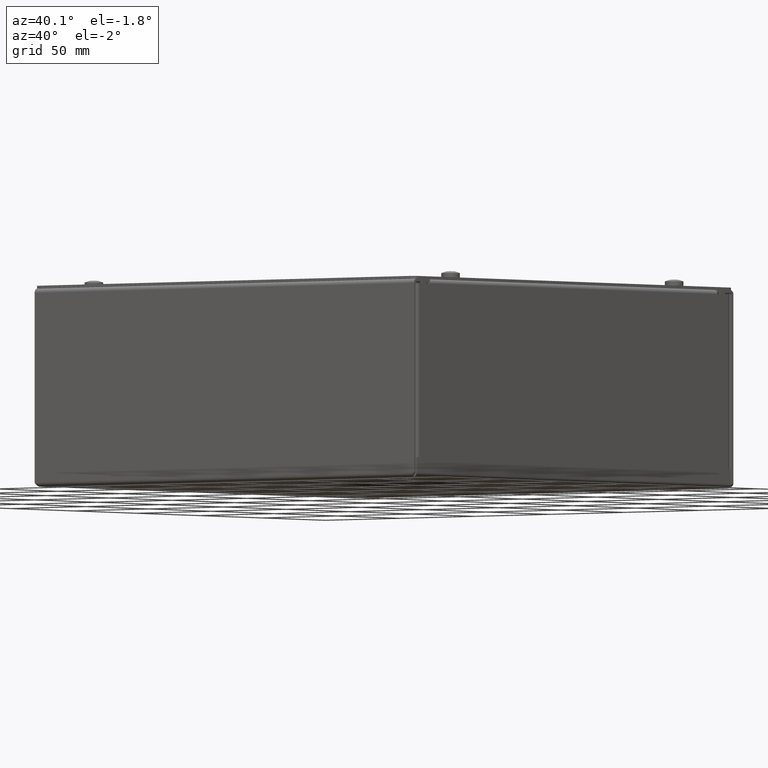
[diagram: clean part render]
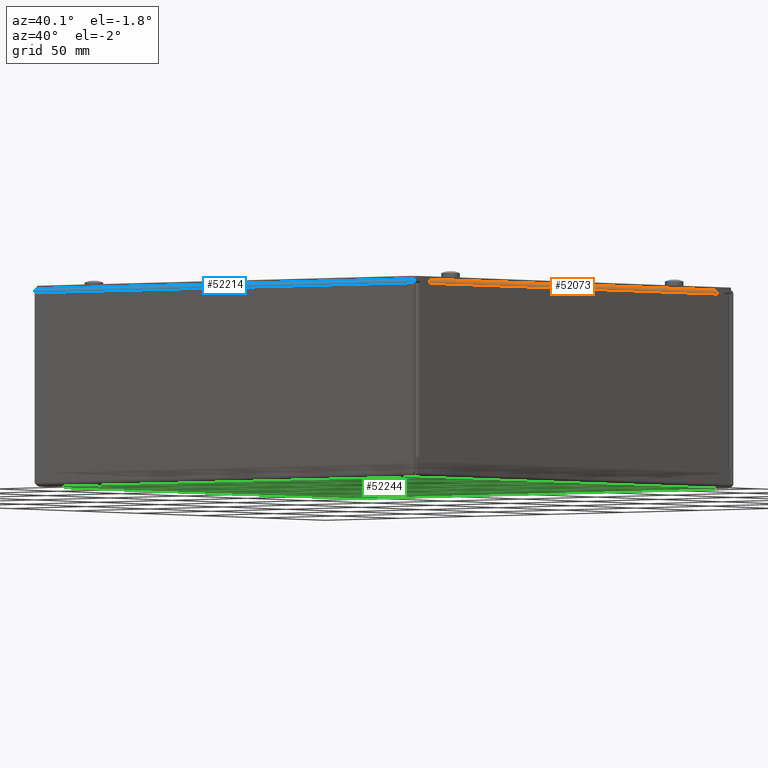
[diagram: same view with three faces highlighted in distinct colors, each labeled with its STEP entity id]
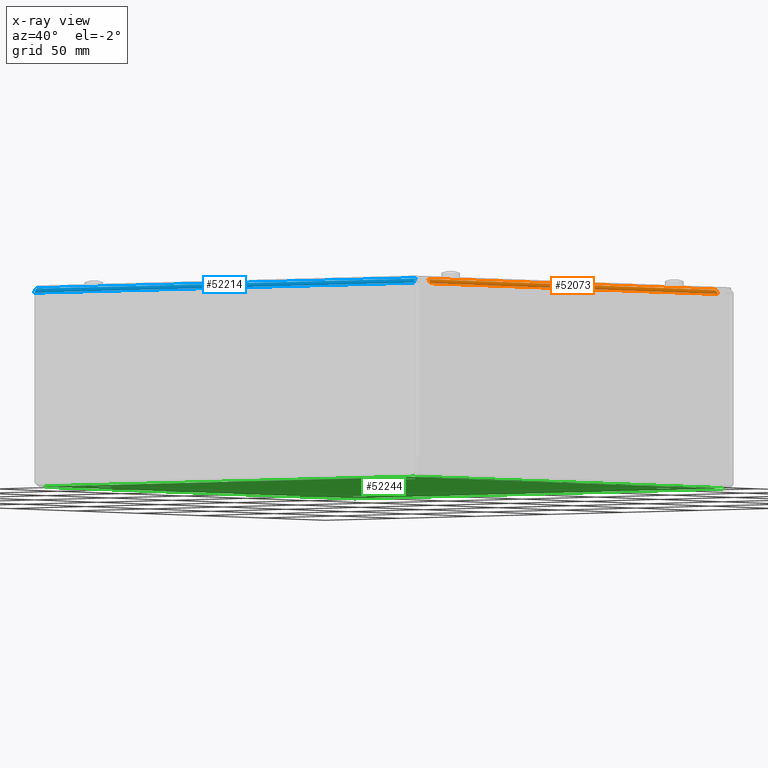
[diagram: x-ray of the same camera — body ghosted, the three highlighted faces saturated]
A machine part, auxiliary view with three faces highlighted in distinct colors.
The next image is the same camera in x-ray (body ghosted, the three faces saturated) — at least one of them is partly hidden behind the body in this view.
Their STEP definitions:

[orange] entity #52073 — the highlighted cylindrical surface (edge-blend (fillet) strip) has radius 2.1844 mm, axis along (0, -1, -0).
#6638=FACE_OUTER_BOUND('',#9436,.T.);
#9436=EDGE_LOOP('',(#37778,#37779,#37780,#37781));
#13009=LINE('',#70762,#18514);
#13010=LINE('',#70765,#18515);
#18514=VECTOR('',#59571,0.393700787401575);
#18515=VECTOR('',#59574,0.393700787401575);
#23621=CIRCLE('',#55383,0.0859999999999997);
#23622=CIRCLE('',#55384,0.0859999999999997);
#23975=VERTEX_POINT('',#68818);
#24625=VERTEX_POINT('',#70760);
#24626=VERTEX_POINT('',#70761);
#24627=VERTEX_POINT('',#70764);
#29914=EDGE_CURVE('',#24625,#24626,#13009,.T.);
#29915=EDGE_CURVE('',#24626,#23975,#23621,.T.);
#29916=EDGE_CURVE('',#24627,#23975,#13010,.T.);
#29917=EDGE_CURVE('',#24627,#24625,#23622,.T.);
#37778=ORIENTED_EDGE('',*,*,#29914,.T.);
#37779=ORIENTED_EDGE('',*,*,#29915,.T.);
#37780=ORIENTED_EDGE('',*,*,#29916,.F.);
#37781=ORIENTED_EDGE('',*,*,#29917,.T.);
#51590=CYLINDRICAL_SURFACE('',#55382,0.0860000000000014);
#52073=ADVANCED_FACE('',(#6638),#51590,.T.);
#55382=AXIS2_PLACEMENT_3D('',#70759,#59569,#59570);
#55383=AXIS2_PLACEMENT_3D('',#70763,#59572,#59573);
#55384=AXIS2_PLACEMENT_3D('',#70766,#59575,#59576);
#59569=DIRECTION('center_axis',(1.81384066852866E-32,-1.,-3.71808180211626E-80));
#59570=DIRECTION('ref_axis',(1.,1.81384066852866E-32,-2.04983925359457E-48));
#59571=DIRECTION('',(1.81384066852863E-32,-1.,-5.11825978746473E-32));
#59572=DIRECTION('center_axis',(-1.81384066852866E-32,1.,3.71808180211626E-80));
#59573=DIRECTION('ref_axis',(8.13201263230295E-15,0.,1.));
#59574=DIRECTION('',(-3.0230677808811E-32,-1.,0.));
#59575=DIRECTION('center_axis',(1.81384066852866E-32,-1.,-3.71808180211626E-80));
#59576=DIRECTION('ref_axis',(1.,0.,2.43960378969088E-14));
#68818=CARTESIAN_POINT('',(5.,-4.499,3.914));
#70759=CARTESIAN_POINT('Origin',(4.914,-7.15922911868259E-34,3.914));
#70760=CARTESIAN_POINT('',(4.914,4.499,4.));
#70761=CARTESIAN_POINT('',(4.914,-4.499,4.));
#70762=CARTESIAN_POINT('',(4.914,-2.32867608295518E-33,4.));
#70763=CARTESIAN_POINT('Origin',(4.914,-4.499,3.914));
#70764=CARTESIAN_POINT('',(5.,4.499,3.914));
#70765=CARTESIAN_POINT('',(5.,-2.2495,3.914));
#70766=CARTESIAN_POINT('Origin',(4.914,4.499,3.914));

[blue] entity #52214 — the highlighted cylindrical surface (edge-blend (fillet) strip) has radius 2.1844 mm, axis along (-1, 0, 0).
#6779=FACE_OUTER_BOUND('',#9659,.T.);
#9659=EDGE_LOOP('',(#38784,#38785,#38786,#38787));
#12410=LINE('',#68956,#17915);
#13286=LINE('',#71463,#18791);
#17915=VECTOR('',#57760,0.393700787401575);
#18791=VECTOR('',#60282,0.393700787401575);
#23695=CIRCLE('',#55593,0.0859999999999997);
#23696=CIRCLE('',#55595,0.0859999999999997);
#24024=VERTEX_POINT('',#68953);
#24025=VERTEX_POINT('',#68955);
#24832=VERTEX_POINT('',#71450);
#24833=VERTEX_POINT('',#71454);
#29011=EDGE_CURVE('',#24024,#24025,#12410,.T.);
#30261=EDGE_CURVE('',#24832,#24025,#23695,.T.);
#30264=EDGE_CURVE('',#24833,#24024,#23696,.T.);
#30267=EDGE_CURVE('',#24832,#24833,#13286,.T.);
#38784=ORIENTED_EDGE('',*,*,#29011,.F.);
#38785=ORIENTED_EDGE('',*,*,#30264,.F.);
#38786=ORIENTED_EDGE('',*,*,#30267,.F.);
#38787=ORIENTED_EDGE('',*,*,#30261,.T.);
#51621=CYLINDRICAL_SURFACE('',#55599,0.0859999999999998);
#52214=ADVANCED_FACE('',(#6779),#51621,.T.);
#55593=AXIS2_PLACEMENT_3D('',#71451,#60264,#60265);
#55595=AXIS2_PLACEMENT_3D('',#71456,#60270,#60271);
#55599=AXIS2_PLACEMENT_3D('',#71462,#60280,#60281);
#57760=DIRECTION('',(1.,-1.75198115615446E-32,-3.45255089946489E-31));
#60264=DIRECTION('center_axis',(-1.,1.75198115615465E-32,5.91506275761856E-63));
#60265=DIRECTION('ref_axis',(0.,-1.,1.62640252646059E-14));
#60270=DIRECTION('center_axis',(-1.,1.75198115615465E-32,5.91506275761856E-63));
#60271=DIRECTION('ref_axis',(0.,-1.,1.62640252646059E-14));
#60280=DIRECTION('center_axis',(-1.,1.75198115615465E-32,5.91506275761856E-63));
#60281=DIRECTION('ref_axis',(-1.75198115615465E-32,-1.,-3.37621368633969E-31));
#60282=DIRECTION('',(-1.,1.75198115615465E-32,0.));
#68953=CARTESIAN_POINT('',(-4.99999999999999,-4.914,4.));
#68955=CARTESIAN_POINT('',(5.,-4.914,4.));
#68956=CARTESIAN_POINT('',(-1.31128703695885E-16,-4.914,4.));
#71450=CARTESIAN_POINT('',(5.,-5.,3.914));
#71451=CARTESIAN_POINT('Origin',(5.,-4.914,3.914));
#71454=CARTESIAN_POINT('',(-5.,-5.,3.914));
#71456=CARTESIAN_POINT('Origin',(-5.,-4.914,3.914));
#71462=CARTESIAN_POINT('Origin',(6.91506962334235E-34,-4.914,3.914));
#71463=CARTESIAN_POINT('',(-2.5,-5.,3.914));

[green] entity #52244 — the highlighted planar face has unit normal (0, 0, 1).
#4210=FACE_BOUND('',#9736,.T.);
#4211=FACE_BOUND('',#9737,.T.);
#4212=FACE_BOUND('',#9738,.T.);
#4213=FACE_BOUND('',#9739,.T.);
#4796=PLANE('',#55633);
#6809=FACE_OUTER_BOUND('',#9735,.T.);
#9735=EDGE_LOOP('',(#39082,#39083,#39084,#39085));
#9736=EDGE_LOOP('',(#39086));
#9737=EDGE_LOOP('',(#39087));
#9738=EDGE_LOOP('',(#39088));
#9739=EDGE_LOOP('',(#39089));
#13309=LINE('',#71938,#18814);
#13313=LINE('',#71945,#18818);
#13317=LINE('',#71951,#18822);
#13320=LINE('',#71958,#18825);
#18814=VECTOR('',#60351,0.393700787401575);
#18818=VECTOR('',#60361,0.393700787401575);
#18822=VECTOR('',#60369,0.393700787401575);
#18825=VECTOR('',#60380,0.393700787401575);
#23310=CIRCLE('',#54734,0.145);
#23312=CIRCLE('',#54737,0.145);
#23314=CIRCLE('',#54740,0.145);
#23316=CIRCLE('',#54743,0.145);
#23936=VERTEX_POINT('',#68712);
#23938=VERTEX_POINT('',#68718);
#23940=VERTEX_POINT('',#68724);
#23942=VERTEX_POINT('',#68730);
#24814=VERTEX_POINT('',#71351);
#24827=VERTEX_POINT('',#71416);
#24845=VERTEX_POINT('',#71510);
#24847=VERTEX_POINT('',#71516);
#28894=EDGE_CURVE('',#23936,#23936,#23310,.T.);
#28897=EDGE_CURVE('',#23938,#23938,#23312,.T.);
#28900=EDGE_CURVE('',#23940,#23940,#23314,.T.);
#28903=EDGE_CURVE('',#23942,#23942,#23316,.T.);
#30306=EDGE_CURVE('',#24847,#24827,#13309,.T.);
#30310=EDGE_CURVE('',#24814,#24847,#13313,.T.);
#30314=EDGE_CURVE('',#24845,#24814,#13317,.T.);
#30317=EDGE_CURVE('',#24827,#24845,#13320,.T.);
#39082=ORIENTED_EDGE('',*,*,#30306,.T.);
#39083=ORIENTED_EDGE('',*,*,#30317,.T.);
#39084=ORIENTED_EDGE('',*,*,#30314,.T.);
#39085=ORIENTED_EDGE('',*,*,#30310,.T.);
#39086=ORIENTED_EDGE('',*,*,#28894,.T.);
#39087=ORIENTED_EDGE('',*,*,#28897,.T.);
#39088=ORIENTED_EDGE('',*,*,#28900,.T.);
#39089=ORIENTED_EDGE('',*,*,#28903,.T.);
#52244=ADVANCED_FACE('',(#6809,#4210,#4211,#4212,#4213),#4796,.F.);
#54734=AXIS2_PLACEMENT_3D('',#68714,#57564,#57565);
#54737=AXIS2_PLACEMENT_3D('',#68720,#57571,#57572);
#54740=AXIS2_PLACEMENT_3D('',#68726,#57578,#57579);
#54743=AXIS2_PLACEMENT_3D('',#68732,#57585,#57586);
#55633=AXIS2_PLACEMENT_3D('',#71960,#60383,#60384);
#57564=DIRECTION('center_axis',(0.,0.,1.));
#57565=DIRECTION('ref_axis',(1.,0.,0.));
#57571=DIRECTION('center_axis',(0.,0.,1.));
#57572=DIRECTION('ref_axis',(1.,0.,0.));
#57578=DIRECTION('center_axis',(0.,0.,1.));
#57579=DIRECTION('ref_axis',(1.,0.,0.));
#57585=DIRECTION('center_axis',(0.,0.,1.));
#57586=DIRECTION('ref_axis',(1.,0.,0.));
#60351=DIRECTION('',(-1.42318495396429E-16,1.,0.));
#60361=DIRECTION('',(-1.,0.,0.));
#60369=DIRECTION('',(1.42318495396429E-16,-1.,0.));
#60380=DIRECTION('',(1.,0.,0.));
#60383=DIRECTION('center_axis',(0.,0.,1.));
#60384=DIRECTION('ref_axis',(1.,0.,0.));
#68712=CARTESIAN_POINT('',(3.855,-4.,0.));
#68714=CARTESIAN_POINT('Origin',(4.,-4.,0.));
#68718=CARTESIAN_POINT('',(3.855,4.,0.));
#68720=CARTESIAN_POINT('Origin',(4.,4.,0.));
#68724=CARTESIAN_POINT('',(-4.145,4.,0.));
#68726=CARTESIAN_POINT('Origin',(-4.,4.,0.));
#68730=CARTESIAN_POINT('',(-4.145,-4.,0.));
#68732=CARTESIAN_POINT('Origin',(-4.,-4.,0.));
#71351=CARTESIAN_POINT('',(4.914,-4.914,0.));
#71416=CARTESIAN_POINT('',(-4.914,4.914,0.));
#71510=CARTESIAN_POINT('',(4.914,4.914,0.));
#71516=CARTESIAN_POINT('',(-4.914,-4.914,0.));
#71938=CARTESIAN_POINT('',(-4.914,2.457,0.));
#71945=CARTESIAN_POINT('',(-2.5,-4.914,0.));
#71951=CARTESIAN_POINT('',(4.914,-2.457,0.));
#71958=CARTESIAN_POINT('',(2.5,4.914,0.));
#71960=CARTESIAN_POINT('Origin',(0.,6.35775533070956E-17,0.));